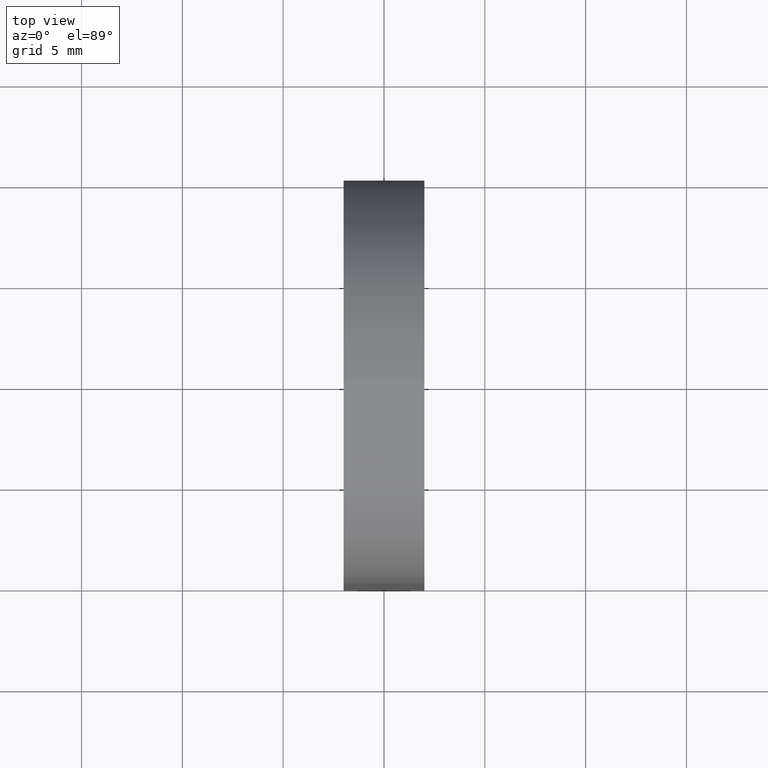
[diagram: clean part render]
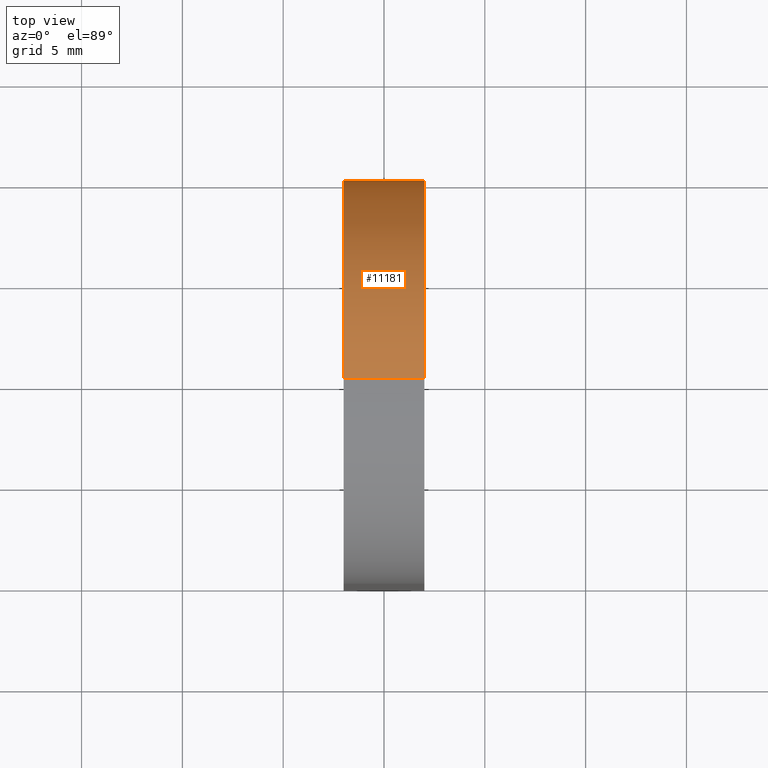
[diagram: same view with one face highlighted and labeled with its STEP entity id]
A machine part, top view. The second image highlights one B-rep face of the part: STEP entity #11181.
In plain terms, the highlighted cylindrical surface (partial cylindrical patch) has radius 10 mm, axis along (-1, -0, -0).
Its self-contained STEP definition (entity closure, byte-faithful):
#119 = AXIS2_PLACEMENT_3D ( 'NONE', #11304, #7728, #7577 ) ;
#169 = CARTESIAN_POINT ( 'NONE',  ( -2.000000000000000000, 0.0000000000000000000, 30.00000000000000000 ) ) ;
#292 = EDGE_CURVE ( 'NONE', #8239, #8913, #6234, .T. ) ;
#750 = DIRECTION ( 'NONE',  ( 0.0000000000000000000, 0.0000000000000000000, 1.000000000000000000 ) ) ;
#867 = CARTESIAN_POINT ( 'NONE',  ( 2.000000000000000000, 10.00000000000000000, 19.99999999999999600 ) ) ;
#880 = DIRECTION ( 'NONE',  ( -1.000000000000000000, -0.0000000000000000000, 0.0000000000000000000 ) ) ;
#1211 = EDGE_LOOP ( 'NONE', ( #6717, #6416, #11296, #3570 ) ) ;
#2500 = AXIS2_PLACEMENT_3D ( 'NONE', #5371, #10850, #750 ) ;
#2609 = VECTOR ( 'NONE', #8403, 1000.000000000000000 ) ;
#3235 = VECTOR ( 'NONE', #6443, 1000.000000000000000 ) ;
#3570 = ORIENTED_EDGE ( 'NONE', *, *, #292, .F. ) ;
#3615 = CARTESIAN_POINT ( 'NONE',  ( 2.000000000000000000, 0.0000000000000000000, 30.00000000000000000 ) ) ;
#3668 = VERTEX_POINT ( 'NONE', #9918 ) ;
#4314 = CARTESIAN_POINT ( 'NONE',  ( 2.000000000000000000, 0.0000000000000000000, 19.99999999999999600 ) ) ;
#4422 = VERTEX_POINT ( 'NONE', #867 ) ;
#4616 = CARTESIAN_POINT ( 'NONE',  ( 2.000000000000000000, 10.00000000000000000, 19.99999999999999600 ) ) ;
#4997 = EDGE_CURVE ( 'NONE', #3668, #8239, #11275, .T. ) ;
#5371 = CARTESIAN_POINT ( 'NONE',  ( -2.000000000000000000, 0.0000000000000000000, 19.99999999999999600 ) ) ;
#6234 = CIRCLE ( 'NONE', #2500, 10.00000000000000200 ) ;
#6416 = ORIENTED_EDGE ( 'NONE', *, *, #11370, .T. ) ;
#6443 = DIRECTION ( 'NONE',  ( -1.000000000000000000, -0.0000000000000000000, -0.0000000000000000000 ) ) ;
#6717 = ORIENTED_EDGE ( 'NONE', *, *, #4997, .F. ) ;
#7577 = DIRECTION ( 'NONE',  ( 0.0000000000000000000, 0.0000000000000000000, 1.000000000000000000 ) ) ;
#7728 = DIRECTION ( 'NONE',  ( -1.000000000000000000, -0.0000000000000000000, -0.0000000000000000000 ) ) ;
#8239 = VERTEX_POINT ( 'NONE', #169 ) ;
#8403 = DIRECTION ( 'NONE',  ( -1.000000000000000000, -0.0000000000000000000, -0.0000000000000000000 ) ) ;
#8610 = AXIS2_PLACEMENT_3D ( 'NONE', #4314, #880, #10790 ) ;
#8743 = FACE_OUTER_BOUND ( 'NONE', #1211, .T. ) ;
#8864 = CIRCLE ( 'NONE', #8610, 10.00000000000000200 ) ;
#8886 = LINE ( 'NONE', #4616, #3235 ) ;
#8913 = VERTEX_POINT ( 'NONE', #10419 ) ;
#9904 = EDGE_CURVE ( 'NONE', #4422, #8913, #8886, .T. ) ;
#9918 = CARTESIAN_POINT ( 'NONE',  ( 2.000000000000000000, 0.0000000000000000000, 30.00000000000000000 ) ) ;
#10419 = CARTESIAN_POINT ( 'NONE',  ( -2.000000000000000000, 10.00000000000000000, 19.99999999999999600 ) ) ;
#10790 = DIRECTION ( 'NONE',  ( 0.0000000000000000000, 0.0000000000000000000, 1.000000000000000000 ) ) ;
#10850 = DIRECTION ( 'NONE',  ( -1.000000000000000000, -0.0000000000000000000, 0.0000000000000000000 ) ) ;
#11147 = CYLINDRICAL_SURFACE ( 'NONE', #119, 10.00000000000000200 ) ;
#11181 = ADVANCED_FACE ( 'NONE', ( #8743 ), #11147, .T. ) ;
#11275 = LINE ( 'NONE', #3615, #2609 ) ;
#11296 = ORIENTED_EDGE ( 'NONE', *, *, #9904, .T. ) ;
#11304 = CARTESIAN_POINT ( 'NONE',  ( 2.000000000000000000, 0.0000000000000000000, 19.99999999999999600 ) ) ;
#11370 = EDGE_CURVE ( 'NONE', #3668, #4422, #8864, .T. ) ;